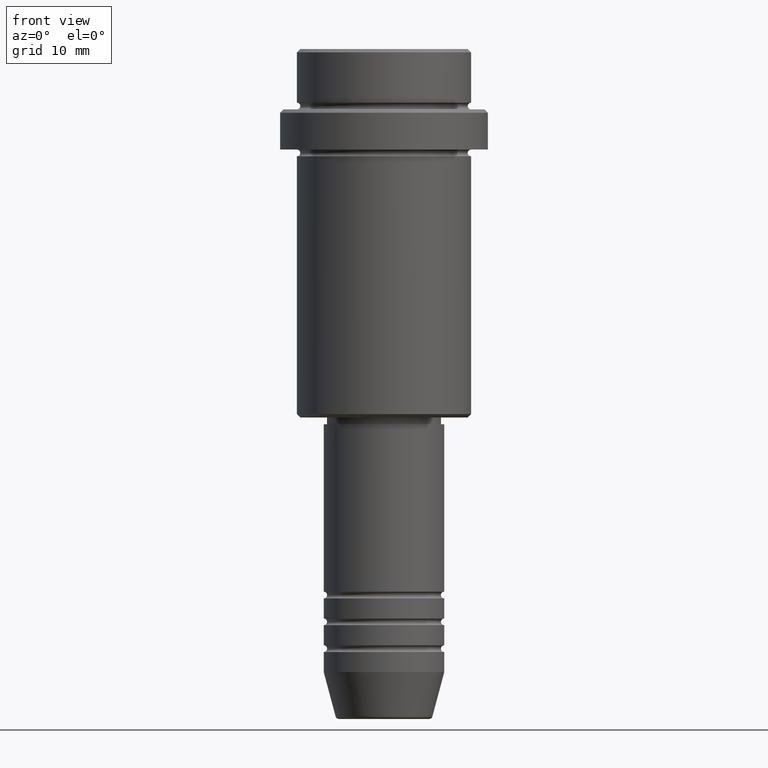
[diagram: clean part render]
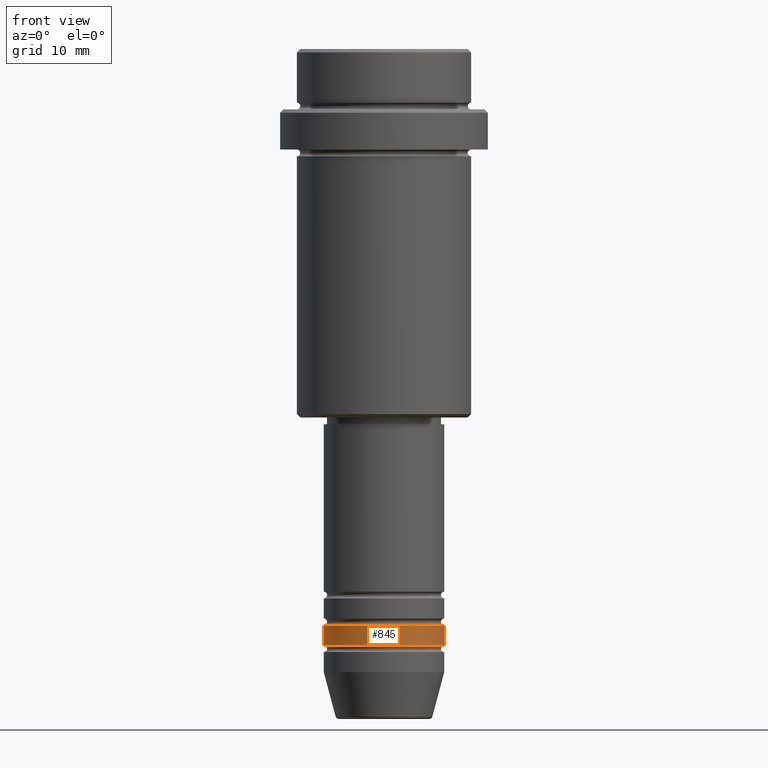
[diagram: same view with one face highlighted and labeled with its STEP entity id]
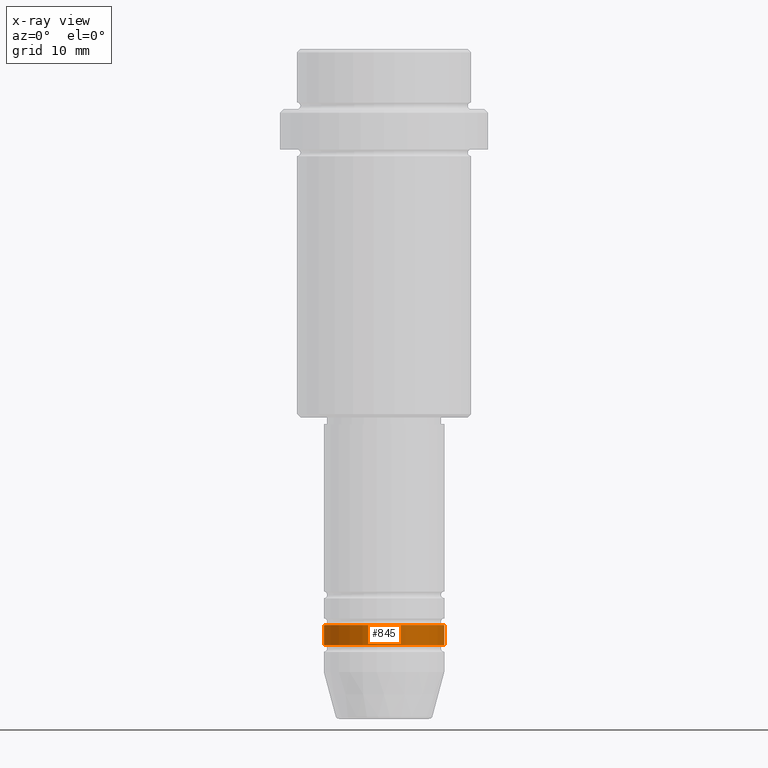
[diagram: x-ray of the same camera — body ghosted, the highlighted face saturated]
A machine part, front view. The second image highlights one B-rep face of the part: STEP entity #845.
The next image is the same camera in x-ray: the body ghosted, the highlighted face saturated — about 0% of this face is hidden behind the body in this view.
In plain terms, the highlighted cylindrical surface (partial cylindrical patch) has radius 9 mm, axis along (-0, -0, 1).
Its self-contained STEP definition (entity closure, byte-faithful):
#15 = CIRCLE ( 'NONE', #882, 9.000000000000000000 ) ;
#42 = DIRECTION ( 'NONE',  ( -0.000000000000000000, -0.000000000000000000, 1.000000000000000000 ) ) ;
#46 = DIRECTION ( 'NONE',  ( 1.000000000000000000, 0.000000000000000000, 0.000000000000000000 ) ) ;
#93 = DIRECTION ( 'NONE',  ( 1.000000000000000000, 0.000000000000000000, 0.000000000000000000 ) ) ;
#129 = AXIS2_PLACEMENT_3D ( 'NONE', #311, #322, #93 ) ;
#156 = CARTESIAN_POINT ( 'NONE',  ( 0.000000000000000000, 0.000000000000000000, -88.99999999999988631 ) ) ;
#183 = EDGE_CURVE ( 'NONE', #1082, #336, #385, .T. ) ;
#210 = EDGE_CURVE ( 'NONE', #1263, #483, #735, .T. ) ;
#261 = DIRECTION ( 'NONE',  ( 1.000000000000000000, 0.000000000000000000, 0.000000000000000000 ) ) ;
#302 = FACE_OUTER_BOUND ( 'NONE', #1146, .T. ) ;
#311 = CARTESIAN_POINT ( 'NONE',  ( 0.000000000000000000, 0.000000000000000000, 0.000000000000000000 ) ) ;
#322 = DIRECTION ( 'NONE',  ( -0.000000000000000000, -0.000000000000000000, 1.000000000000000000 ) ) ;
#336 = VERTEX_POINT ( 'NONE', #1095 ) ;
#358 = CARTESIAN_POINT ( 'NONE',  ( -9.000000000000000000, 1.102182119232617714E-15, -85.99999999999988631 ) ) ;
#385 = LINE ( 'NONE', #594, #603 ) ;
#481 = CARTESIAN_POINT ( 'NONE',  ( 0.000000000000000000, 0.000000000000000000, -85.99999999999988631 ) ) ;
#483 = VERTEX_POINT ( 'NONE', #358 ) ;
#503 = CARTESIAN_POINT ( 'NONE',  ( -9.000000000000000000, 1.102182119232617714E-15, -88.99999999999988631 ) ) ;
#505 = ORIENTED_EDGE ( 'NONE', *, *, #183, .T. ) ;
#594 = CARTESIAN_POINT ( 'NONE',  ( 9.000000000000000000, 0.000000000000000000, 0.000000000000000000 ) ) ;
#601 = ORIENTED_EDGE ( 'NONE', *, *, #210, .F. ) ;
#603 = VECTOR ( 'NONE', #1031, 1000.000000000000000 ) ;
#662 = AXIS2_PLACEMENT_3D ( 'NONE', #481, #42, #261 ) ;
#735 = LINE ( 'NONE', #848, #1131 ) ;
#768 = CIRCLE ( 'NONE', #662, 9.000000000000000000 ) ;
#815 = ORIENTED_EDGE ( 'NONE', *, *, #1233, .F. ) ;
#834 = DIRECTION ( 'NONE',  ( -0.000000000000000000, -0.000000000000000000, 1.000000000000000000 ) ) ;
#845 = ADVANCED_FACE ( 'NONE', ( #302 ), #965, .T. ) ;
#848 = CARTESIAN_POINT ( 'NONE',  ( -9.000000000000000000, 1.102182119232617714E-15, 0.000000000000000000 ) ) ;
#872 = CARTESIAN_POINT ( 'NONE',  ( 9.000000000000000000, 0.000000000000000000, -88.99999999999988631 ) ) ;
#882 = AXIS2_PLACEMENT_3D ( 'NONE', #156, #1247, #46 ) ;
#965 = CYLINDRICAL_SURFACE ( 'NONE', #129, 9.000000000000000000 ) ;
#1031 = DIRECTION ( 'NONE',  ( -0.000000000000000000, -0.000000000000000000, 1.000000000000000000 ) ) ;
#1075 = ORIENTED_EDGE ( 'NONE', *, *, #1169, .T. ) ;
#1082 = VERTEX_POINT ( 'NONE', #872 ) ;
#1095 = CARTESIAN_POINT ( 'NONE',  ( 9.000000000000000000, 0.000000000000000000, -85.99999999999988631 ) ) ;
#1131 = VECTOR ( 'NONE', #834, 1000.000000000000000 ) ;
#1146 = EDGE_LOOP ( 'NONE', ( #601, #1075, #505, #815 ) ) ;
#1169 = EDGE_CURVE ( 'NONE', #1263, #1082, #15, .T. ) ;
#1233 = EDGE_CURVE ( 'NONE', #483, #336, #768, .T. ) ;
#1247 = DIRECTION ( 'NONE',  ( -0.000000000000000000, -0.000000000000000000, 1.000000000000000000 ) ) ;
#1263 = VERTEX_POINT ( 'NONE', #503 ) ;